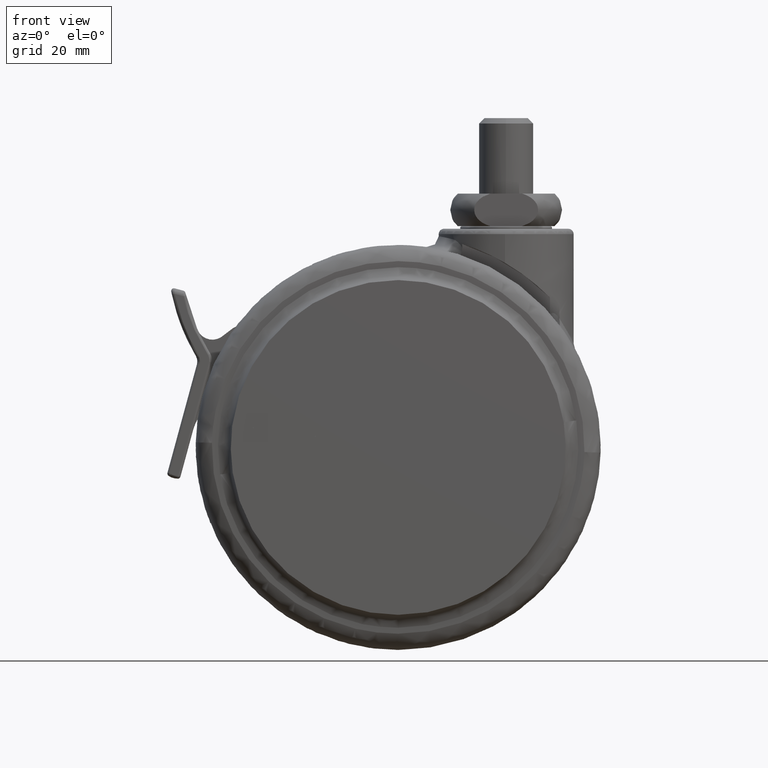
[diagram: clean part render]
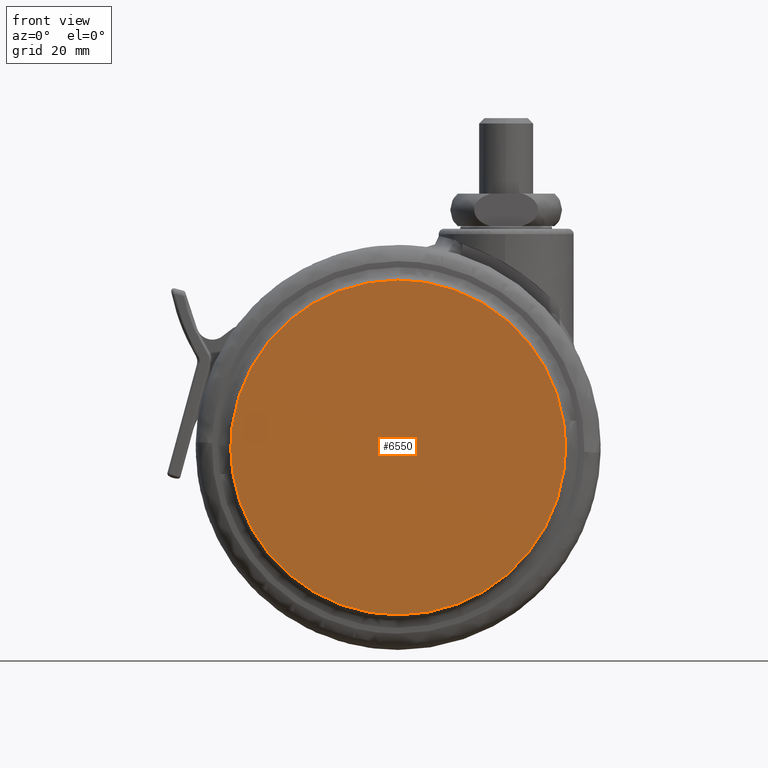
[diagram: same view with one face highlighted and labeled with its STEP entity id]
A machine part, front view. The second image highlights one B-rep face of the part: STEP entity #6550.
In plain terms, the highlighted face is a freeform B-spline surface patch.
Its self-contained STEP definition (entity closure, byte-faithful):
#6410=CARTESIAN_POINT('',(10.648204086947260,-23.499999999140972,-35.843006737229253));
#6411=VERTEX_POINT('',#6410);
#6425=CARTESIAN_POINT('',(-20.0,-23.500000000000021,-71.500000000000185));
#6426=VERTEX_POINT('',#6425);
#6427=CARTESIAN_POINT('',(-20.0,-23.500000000000021,-71.500000000000185));
#6428=CARTESIAN_POINT('',(11.000000000031953,-23.499999999630838,-71.499999999995254));
#6429=CARTESIAN_POINT('',(11.000000000069130,-23.499999999201311,-40.499999999989498));
#6430=CARTESIAN_POINT('',(11.000000000071932,-23.499999999168864,-38.158215786095255));
#6431=CARTESIAN_POINT('',(10.648204086947262,-23.499999999140975,-35.843006737229246));
#6439=(BOUNDED_CURVE()B_SPLINE_CURVE(2,(#6427,#6428,#6429,#6430,#6431),.UNSPECIFIED.,.F.,.U.)B_SPLINE_CURVE_WITH_KNOTS((3,2,3),(0.0,0.250000000000000,0.275897584623553),.UNSPECIFIED.)CURVE()GEOMETRIC_REPRESENTATION_ITEM()RATIONAL_B_SPLINE_CURVE((1.0,0.707106781186548,1.0,0.969659092320456,0.945604234434402))REPRESENTATION_ITEM(''));
#6440=EDGE_CURVE('',#6426,#6411,#6439,.T.);
#6442=CARTESIAN_POINT('',(-50.648204086947260,-23.499999999140972,-45.156993262770747));
#6443=VERTEX_POINT('',#6442);
#6444=CARTESIAN_POINT('',(-50.648204086947260,-23.499999999140968,-45.156993262770762));
#6445=CARTESIAN_POINT('',(-46.645385372037936,-23.499999999570488,-71.500000000005727));
#6446=CARTESIAN_POINT('',(-20.0,-23.500000000000021,-71.500000000000185));
#6454=(BOUNDED_CURVE()B_SPLINE_CURVE(2,(#6444,#6445,#6446),.UNSPECIFIED.,.F.,.U.)B_SPLINE_CURVE_WITH_KNOTS((3,3),(0.775897584623553,1.0),.UNSPECIFIED.)CURVE()GEOMETRIC_REPRESENTATION_ITEM()RATIONAL_B_SPLINE_CURVE((0.945604234434402,0.737447688866092,1.0))REPRESENTATION_ITEM(''));
#6455=EDGE_CURVE('',#6443,#6426,#6454,.T.);
#6504=CARTESIAN_POINT('',(-20.0,-23.500000000000000,-9.500000000000002));
#6505=VERTEX_POINT('',#6504);
#6506=CARTESIAN_POINT('',(-20.0,-23.500000000000000,-9.500000000000002));
#6507=CARTESIAN_POINT('',(-51.000000000031974,-23.499999999630823,-9.500000000004851));
#6508=CARTESIAN_POINT('',(-51.000000000069129,-23.499999999201300,-40.500000000010488));
#6509=CARTESIAN_POINT('',(-51.000000000071942,-23.499999999168857,-42.841784213904745));
#6510=CARTESIAN_POINT('',(-50.648204086947260,-23.499999999140968,-45.156993262770762));
#6518=(BOUNDED_CURVE()B_SPLINE_CURVE(2,(#6506,#6507,#6508,#6509,#6510),.UNSPECIFIED.,.F.,.U.)B_SPLINE_CURVE_WITH_KNOTS((3,2,3),(0.500000000000000,0.750000000000000,0.775897584623553),.UNSPECIFIED.)CURVE()GEOMETRIC_REPRESENTATION_ITEM()RATIONAL_B_SPLINE_CURVE((1.0,0.707106781186548,1.0,0.969659092320456,0.945604234434402))REPRESENTATION_ITEM(''));
#6519=EDGE_CURVE('',#6505,#6443,#6518,.T.);
#6521=CARTESIAN_POINT('',(10.648204086947262,-23.499999999140975,-35.843006737229246));
#6522=CARTESIAN_POINT('',(6.645385372037931,-23.499999999570491,-9.499999999994349));
#6523=CARTESIAN_POINT('',(-20.0,-23.500000000000000,-9.500000000000002));
#6531=(BOUNDED_CURVE()B_SPLINE_CURVE(2,(#6521,#6522,#6523),.UNSPECIFIED.,.F.,.U.)B_SPLINE_CURVE_WITH_KNOTS((3,3),(0.275897584623553,0.500000000000000),.UNSPECIFIED.)CURVE()GEOMETRIC_REPRESENTATION_ITEM()RATIONAL_B_SPLINE_CURVE((0.945604234434402,0.737447688866092,1.0))REPRESENTATION_ITEM(''));
#6532=EDGE_CURVE('',#6411,#6505,#6531,.T.);
#6539=CARTESIAN_POINT('',(-54.089121003145273,-23.500000000000000,-6.403100120168022));
#6540=CARTESIAN_POINT('',(-54.089121003145273,-23.500000000000000,-74.596901542801746));
#6541=CARTESIAN_POINT('',(14.089122665735459,-23.500000000000000,-6.403100120168022));
#6542=CARTESIAN_POINT('',(14.089122665735459,-23.500000000000000,-74.596901542801746));
#6543=B_SPLINE_SURFACE_WITH_KNOTS('',1,1,((#6539,#6541),(#6540,#6542)),.UNSPECIFIED.,.F.,.F.,.U.,(2,2),(2,2),(0.0,68.193801422633726),(0.0,68.178243668880725),.UNSPECIFIED.);
#6544=ORIENTED_EDGE('',*,*,#6440,.T.);
#6545=ORIENTED_EDGE('',*,*,#6532,.T.);
#6546=ORIENTED_EDGE('',*,*,#6519,.T.);
#6547=ORIENTED_EDGE('',*,*,#6455,.T.);
#6548=EDGE_LOOP('',(#6544,#6545,#6546,#6547));
#6549=FACE_OUTER_BOUND('',#6548,.T.);
#6550=ADVANCED_FACE('',(#6549),#6543,.T.);